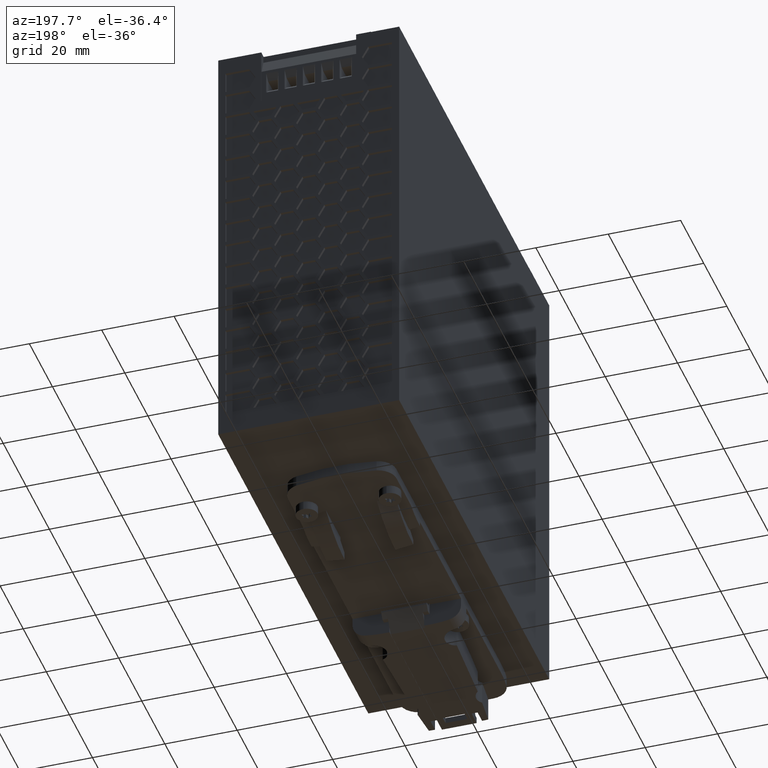
[diagram: clean part render]
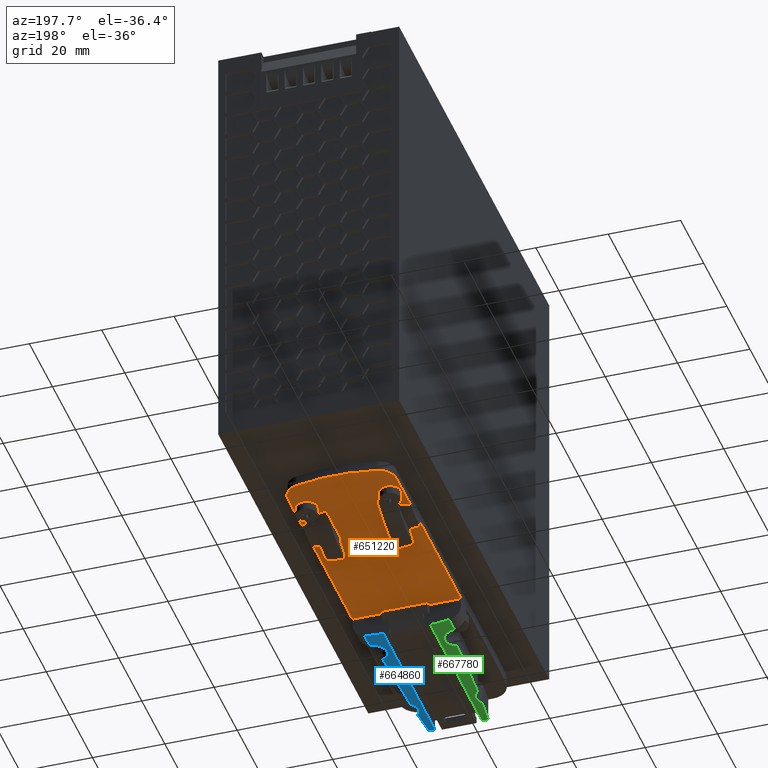
[diagram: same view with three faces highlighted in distinct colors, each labeled with its STEP entity id]
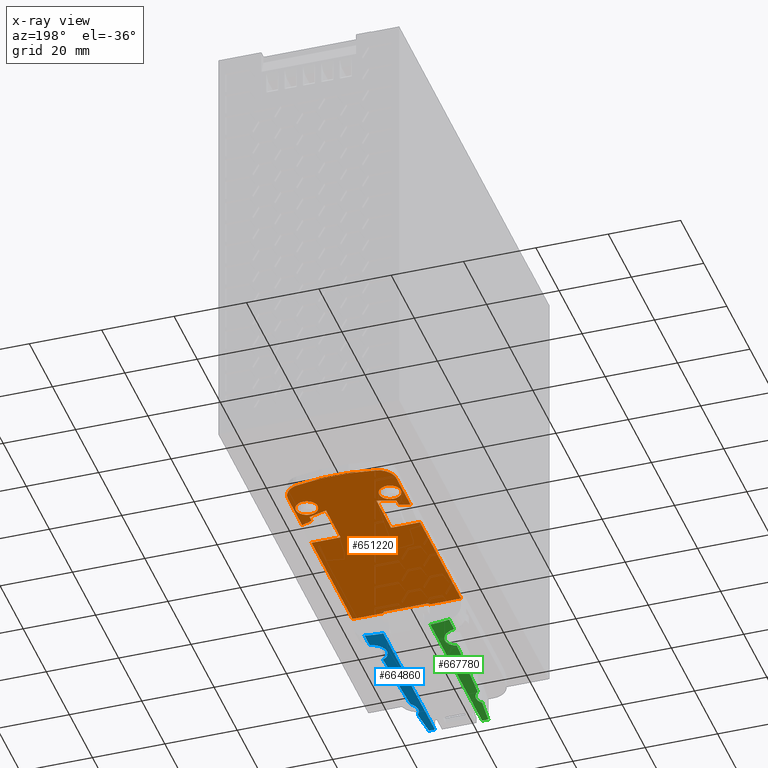
[diagram: x-ray of the same camera — body ghosted, the three highlighted faces saturated]
A machine part, auxiliary view with three faces highlighted in distinct colors.
The next image is the same camera in x-ray (body ghosted, the three faces saturated) — at least one of them is partly hidden behind the body in this view.
Their STEP definitions:

[orange] entity #651220 — the highlighted planar face has unit normal (-0, 0, -1).
#310870=CARTESIAN_POINT('',(32.,-2.89999999999985,64.2));
#310880=DIRECTION('',(0.,0.,-1.));
#310890=VECTOR('',#310880,1.);
#310900=LINE('',#310870,#310890);
#310910=CARTESIAN_POINT('',(32.,-2.89999999999985,48.6523651948));
#310920=VERTEX_POINT('',#310910);
#310930=CARTESIAN_POINT('',(32.,-2.90000000000198,36.1135978063275));
#310940=VERTEX_POINT('',#310930);
#310950=EDGE_CURVE('',#310920,#310940,#310900,.T.);
#311210=CARTESIAN_POINT('',(42.4330361227589,-5.8719307806161,
57.3092786376549));
#311220=CARTESIAN_POINT('',(40.5668610856737,-6.28936042862193,
57.3075803883665));
#311230=CARTESIAN_POINT('',(38.7006860485886,-6.7067900766278,
57.3058821390782));
#311240=CARTESIAN_POINT('',(35.3079142542569,-7.4656918450729,
57.3027946621959));
#311250=CARTESIAN_POINT('',(33.6910771503104,-7.71225648277388,
57.3015810061395));
#311260=CARTESIAN_POINT('',(30.2523935024902,-8.0731262918686,
57.2991526175823));
#311270=CARTESIAN_POINT('',(28.350584266918,-8.27271008789782,
57.2978095653394));
#311280=CARTESIAN_POINT('',(26.4487750313459,-8.47229388392702,
57.2964665130965));
#311290=CARTESIAN_POINT('',(42.4539551395728,-5.95724139880369,
55.2502600450842));
#311300=CARTESIAN_POINT('',(40.5772798671158,-6.34111271368933,
55.2814383746029));
#311310=CARTESIAN_POINT('',(38.7006045946588,-6.72498402857495,
55.3126167041215));
#311320=CARTESIAN_POINT('',(35.3079943449856,-7.41893773305972,
55.3689801687258));
#311330=CARTESIAN_POINT('',(33.6919153121875,-7.65151923842788,
55.3944994954395));
#311340=CARTESIAN_POINT('',(30.253943043729,-7.99073841994543,
55.4438099938094));
#311350=CARTESIAN_POINT('',(28.3504536945764,-8.17855264549077,
55.4711115544734));
#311360=CARTESIAN_POINT('',(26.4469643454238,-8.36636687103612,
55.4984131151374));
#311370=CARTESIAN_POINT('',(42.4715013295073,-6.04398788001157,
53.1906142896878));
#311380=CARTESIAN_POINT('',(40.5860122351181,-6.39358293026685,
53.2549827794264));
#311390=CARTESIAN_POINT('',(38.700523140729,-6.74317798052213,
53.3193512691649));
#311400=CARTESIAN_POINT('',(35.3080744357144,-7.37218362104655,
53.4351656752556));
#311410=CARTESIAN_POINT('',(33.6927534740647,-7.59078199408189,
53.4874179847395));
#311420=CARTESIAN_POINT('',(30.2554925849678,-7.90835054802223,
53.5884673700365));
#311430=CARTESIAN_POINT('',(28.3510617400664,-8.08430092508354,
53.6444542655406));
#311440=CARTESIAN_POINT('',(26.4466308951649,-8.26025130214487,
53.7004411610446));
#311450=CARTESIAN_POINT('',(42.5071482549067,-6.25036189252249,
49.4209231055801));
#311460=CARTESIAN_POINT('',(40.6037432718401,-6.51903220769434,
49.3265744421779));
#311470=CARTESIAN_POINT('',(38.7003382887734,-6.78770252286618,
49.2322257787758));
#311480=CARTESIAN_POINT('',(35.3082554680595,-7.26650339217036,
49.0640857964121));
#311490=CARTESIAN_POINT('',(33.6947308680591,-7.44749050650361,
48.988225610378));
#311500=CARTESIAN_POINT('',(30.2593787824376,-7.70004534760166,
48.8415215652227));
#311510=CARTESIAN_POINT('',(28.3514124737184,-7.8403122302702,
48.7600433444952));
#311520=CARTESIAN_POINT('',(26.4434461649992,-7.98057911293873,
48.6785651237676));
#311530=CARTESIAN_POINT('',(42.4608041585776,-5.84829819696226,
45.2963291142109));
#311540=CARTESIAN_POINT('',(40.5751185068833,-6.01310752754441,
44.9584347554809));
#311550=CARTESIAN_POINT('',(38.6894328551889,-6.17791685812655,
44.6205403967509));
#311560=CARTESIAN_POINT('',(35.319114616798,-6.47248339535341,
44.0166160264012));
#311570=CARTESIAN_POINT('',(33.7109189198015,-6.58591233526711,
43.7684001491641));
#311580=CARTESIAN_POINT('',(30.2759433236546,-6.73921185831043,
43.332605380787));
#311590=CARTESIAN_POINT('',(28.3829355094279,-6.82369490248801,
43.0924398020672));
#311600=CARTESIAN_POINT('',(26.4899276952012,-6.9081779466656,
42.8522742233474));
#311610=CARTESIAN_POINT('',(42.3225651269015,-4.17137928671241,
41.4714496218796));
#311620=CARTESIAN_POINT('',(40.4995471570175,-4.21269459471098,
40.9144327159765));
#311630=CARTESIAN_POINT('',(38.6765291871335,-4.25400990270954,
40.3574158100735));
#311640=CARTESIAN_POINT('',(35.3319653811219,-4.329808214108,
39.3354957776897));
#311650=CARTESIAN_POINT('',(33.7290264313355,-4.35892010890649,
38.9227194583392));
#311660=CARTESIAN_POINT('',(30.2933207347094,-4.40628942507581,
38.2058204329454));
#311670=CARTESIAN_POINT('',(28.4351246083815,-4.43190904665722,
37.8180867009022));
#311680=CARTESIAN_POINT('',(26.5769284820535,-4.45752866823862,
37.4303529688589));
#311690=CARTESIAN_POINT('',(42.17945453902,-2.0984814082195,
38.2710564184085));
#311700=CARTESIAN_POINT('',(40.4258545625356,-2.07340280328271,
37.5827138078042));
#311710=CARTESIAN_POINT('',(38.6722545860513,-2.04832419834592,
36.8943711971999));
#311720=CARTESIAN_POINT('',(35.3362224829122,-2.00061489617154,
35.5848746884589));
#311730=CARTESIAN_POINT('',(33.7350067212852,-1.98229146073094,
35.051834035831));
#311740=CARTESIAN_POINT('',(30.2990273468992,-1.9524857358488,
34.1042558552693));
#311750=CARTESIAN_POINT('',(28.4828651304575,-1.93673126660833,
33.603392636622));
#311760=CARTESIAN_POINT('',(26.6667029140159,-1.92097679736788,
33.1025294179747));
#311770=CARTESIAN_POINT('',(42.2014714119179,-0.973799623313646,
36.5542795923739));
#311780=CARTESIAN_POINT('',(40.4359323961913,-0.97569003400325,
35.8826208818768));
#311790=CARTESIAN_POINT('',(38.6703933804648,-0.97758044469284,
35.2109621713798));
#311800=CARTESIAN_POINT('',(35.3380857771499,-0.981148437163242,
33.943262387979));
#311810=CARTESIAN_POINT('',(33.7375169976208,-0.984681862494128,
33.4269977560304));
#311820=CARTESIAN_POINT('',(30.3012372695568,-0.998969557206628,
32.5087376090988));
#311830=CARTESIAN_POINT('',(28.4791808000678,-1.00654547903056,
32.0218384117703));
#311840=CARTESIAN_POINT('',(26.6571243305788,-1.01412140085451,
31.5349392144417));
#311850=CARTESIAN_POINT('',(42.2220204806421,0.151714374182433,
34.8362878369812));
#311860=CARTESIAN_POINT('',(40.4452763277602,0.122438841571324,
34.1819204912704));
#311870=CARTESIAN_POINT('',(38.6685321748784,0.0931633089602286,
33.5275531455596));
#311880=CARTESIAN_POINT('',(35.3399490713876,0.0383180218450576,
32.3016500874991));
#311890=CARTESIAN_POINT('',(33.7400272739564,0.0129277357426787,
31.8021614762297));
#311900=CARTESIAN_POINT('',(30.3034471922145,-0.0454533785644529,
30.9132193629283));
#311910=CARTESIAN_POINT('',(28.4760678670652,-0.076497160093318,
30.4405301194179));
#311920=CARTESIAN_POINT('',(26.6486885419159,-0.107540941622176,
29.9678408759075));
#311930=B_SPLINE_SURFACE_WITH_KNOTS('',3,3,((#311210,#311290,#311370,
#311450,#311530,#311610,#311690,#311770,#311850),(#311220,#311300,
#311380,#311460,#311540,#311620,#311700,#311780,#311860),(#311230,
#311310,#311390,#311470,#311550,#311630,#311710,#311790,#311870),(
#311240,#311320,#311400,#311480,#311560,#311640,#311720,#311800,#311880)
,(#311250,#311330,#311410,#311490,#311570,#311650,#311730,#311810,
#311890),(#311260,#311340,#311420,#311500,#311580,#311660,#311740,
#311820,#311900),(#311270,#311350,#311430,#311510,#311590,#311670,
#311750,#311830,#311910),(#311280,#311360,#311440,#311520,#311600,
#311680,#311760,#311840,#311920)),.UNSPECIFIED.,.F.,.F.,.F.,(4,2,2,4),(4
,2,1,2,4),(-0.530299195767868,0.0083302807718563,0.494384454739451,
1.03935536184108),(-0.34261094403884,2.36588213699451E-9,0.4974044135323
,0.994808800538165,1.33311810925078),.UNSPECIFIED.);
#312590=CARTESIAN_POINT('',(37.,-2.9000000000019,37.6308130367753));
#312600=VERTEX_POINT('',#312590);
#312890=CARTESIAN_POINT('',(50.3776186215084,-1.50441604344119,
59.4422116509293));
#312900=CARTESIAN_POINT('',(46.8905807945972,-2.46315462780623,
59.4291910818211));
#312910=CARTESIAN_POINT('',(43.4035429676859,-3.42189321217126,
59.4161705127128));
#312920=CARTESIAN_POINT('',(38.940036942065,-4.64910543662229,
59.3995038197898));
#312930=CARTESIAN_POINT('',(37.960256886242,-4.85962099943143,
59.3958818651492));
#312940=CARTESIAN_POINT('',(33.4409182175586,-5.63586521223752,
59.3801421308891));
#312950=CARTESIAN_POINT('',(29.8633678936988,-6.2503473164804,
59.3676824115523));
#312960=CARTESIAN_POINT('',(26.2858175698389,-6.86482942072328,
59.3552226922154));
#312970=CARTESIAN_POINT('',(50.4649916167112,-1.82158789203813,
55.3601727874814));
#312980=CARTESIAN_POINT('',(46.933910524371,-2.66380690771619,
55.4705294111995));
#312990=CARTESIAN_POINT('',(43.4028294320308,-3.50602592339425,
55.5808860349176));
#313000=CARTESIAN_POINT('',(38.9402583424642,-4.57042012227036,
55.7203544486039));
#313010=CARTESIAN_POINT('',(37.9611211893232,-4.75735439245213,
55.7498389987853));
#313020=CARTESIAN_POINT('',(33.4445600352414,-5.45403637972801,
55.8793868759339));
#313030=CARTESIAN_POINT('',(29.8531594499154,-6.00801185167029,
55.9823985049027));
#313040=CARTESIAN_POINT('',(26.2617588645895,-6.56198732361257,
56.0854101338715));
#313050=CARTESIAN_POINT('',(50.5286159205105,-2.15008544179697,
51.2734387849827));
#313060=CARTESIAN_POINT('',(46.9653659084431,-2.8701220382071,
51.5095201710525));
#313070=CARTESIAN_POINT('',(43.4021158963756,-3.59015863461723,
51.7456015571224));
#313080=CARTESIAN_POINT('',(38.9404797428634,-4.49173480791843,
52.0412050774179));
#313090=CARTESIAN_POINT('',(37.9619854924043,-4.65508778547282,
52.1037961324214));
#313100=CARTESIAN_POINT('',(33.4482018529241,-5.27220754721856,
52.3786316209787));
#313110=CARTESIAN_POINT('',(29.8499081675462,-5.76416248329237,
52.5977247104977));
#313120=CARTESIAN_POINT('',(26.2516144821684,-6.25611741936619,
52.8168178000166));
#313130=CARTESIAN_POINT('',(50.6483174526818,-2.76885470264525,
46.2375598117744));
#313140=CARTESIAN_POINT('',(47.0245824565934,-3.25896317019364,
46.0156643377701));
#313150=CARTESIAN_POINT('',(43.400847460505,-3.74907163774202,
45.7937688637657));
#313160=CARTESIAN_POINT('',(38.9408721296792,-4.35228122041133,
45.5206671217372));
#313170=CARTESIAN_POINT('',(37.9635597476711,-4.46881777420784,
45.4628361372625));
#313180=CARTESIAN_POINT('',(33.455157280269,-4.91477929631874,
45.2088834944163));
#313190=CARTESIAN_POINT('',(29.8298122310565,-5.27339066875368,
45.0046723657218));
#313200=CARTESIAN_POINT('',(26.204467181844,-5.6320020411886,
44.8004612370273));
#313210=CARTESIAN_POINT('',(50.6049814775971,-2.6222892265708,
44.2393795760115));
#313220=CARTESIAN_POINT('',(46.9952071859746,-2.99199532570333,
43.7297662101082));
#313230=CARTESIAN_POINT('',(43.3854328943521,-3.36170142483587,
43.220152844205));
#313240=CARTESIAN_POINT('',(38.9456771456137,-3.8164126190445,
42.5933660458853));
#313250=CARTESIAN_POINT('',(37.971404518455,-3.90418316005901,
42.4666744442494));
#313260=CARTESIAN_POINT('',(33.4708672381153,-4.23934325728173,
41.9355672067343));
#313270=CARTESIAN_POINT('',(29.8596925148013,-4.50827151983414,
41.5094134139723));
#313280=CARTESIAN_POINT('',(26.2485177914873,-4.77719978238656,
41.0832596212103));
#313290=CARTESIAN_POINT('',(50.2943671864489,-1.34931680142654,
39.9913724092951));
#313300=CARTESIAN_POINT('',(46.8245274244743,-1.43722363528622,
38.9357969268405));
#313310=CARTESIAN_POINT('',(43.3546876624996,-1.52513046914591,
37.8802214443859));
#313320=CARTESIAN_POINT('',(38.9552615333447,-1.63658795662179,
36.5418523330229));
#313330=CARTESIAN_POINT('',(37.9868939039784,-1.65819126234517,
36.2753377051105));
#313340=CARTESIAN_POINT('',(33.5012358905247,-1.74300799729021,
35.1724183339624));
#313350=CARTESIAN_POINT('',(29.9899657319504,-1.80940059107845,
34.3090783594011));
#313360=CARTESIAN_POINT('',(26.4786955733761,-1.87579318486669,
33.4457383848398));
#313370=CARTESIAN_POINT('',(50.4222429006199,-0.0255577472708595,
36.007238829443));
#313380=CARTESIAN_POINT('',(46.879676351948,-0.136535036818351,
35.0982011918251));
#313390=CARTESIAN_POINT('',(43.3371098032761,-0.247512326365836,
34.1891635542072));
#313400=CARTESIAN_POINT('',(38.9607663109547,-0.384609183188104,
33.0661752080444));
#313410=CARTESIAN_POINT('',(37.9954847551747,-0.41250064717169,
32.8414472804948));
#313420=CARTESIAN_POINT('',(33.516650024788,-0.534077769296189,
31.903506703822));
#313430=CARTESIAN_POINT('',(29.9619732528168,-0.630568798332604,
31.1590997805729));
#313440=CARTESIAN_POINT('',(26.4072964808457,-0.727059827369018,
30.4146928573239));
#313450=CARTESIAN_POINT('',(50.5325160442117,1.29974594385899,
32.0019344645501));
#313460=CARTESIAN_POINT('',(46.9260239941322,1.16492588013661,
31.2500200642893));
#313470=CARTESIAN_POINT('',(43.3195319440527,1.03010581641421,
30.4981056640284));
#313480=CARTESIAN_POINT('',(38.9662710885648,0.867369590245588,
29.5904980830659));
#313490=CARTESIAN_POINT('',(38.004075606371,0.83318996800179,
29.4075568558791));
#313500=CARTESIAN_POINT('',(33.5320641590512,0.674852458697835,
28.6345950736815));
#313510=CARTESIAN_POINT('',(29.9401788551655,0.547676985329218,
28.0137580971563));
#313520=CARTESIAN_POINT('',(26.3482935512799,0.420501511960609,
27.392921120631));
#313530=B_SPLINE_SURFACE_WITH_KNOTS('',3,3,((#312890,#312970,#313050,
#313130,#313210,#313290,#313370,#313450),(#312900,#312980,#313060,
#313140,#313220,#313300,#313380,#313460),(#312910,#312990,#313070,
#313150,#313230,#313310,#313390,#313470),(#312920,#313000,#313080,
#313160,#313240,#313320,#313400,#313480),(#312930,#313010,#313090,
#313170,#313250,#313330,#313410,#313490),(#312940,#313020,#313100,
#313180,#313260,#313340,#313420,#313500),(#312950,#313030,#313110,
#313190,#313270,#313350,#313430,#313510),(#312960,#313040,#313120,
#313200,#313280,#313360,#313440,#313520)),.UNSPECIFIED.,.F.,.F.,.F.,(4,2
,2,4),(4,2,2,4),(-1.04425037197643,0.00840241999769925,0.303174667007196
,1.36540567626834),(-0.672680963199468,0.00647129604993427,
0.596721513342289,1.28419559916893),.UNSPECIFIED.);
#313720=CARTESIAN_POINT('',(37.,-2.89999999999985,39.3937014627783));
#313730=VERTEX_POINT('',#313720);
#313760=CARTESIAN_POINT('',(37.,-2.89999999999985,64.2));
#313770=DIRECTION('',(0.,0.,-1.));
#313780=VECTOR('',#313770,1.);
#313790=LINE('',#313760,#313780);
#313800=EDGE_CURVE('',#313730,#312600,#313790,.T.);
#313930=CARTESIAN_POINT('',(19.775,-2.89999999999985,41.35442945301));
#313940=DIRECTION('',(-0.,-1.,-0.));
#313950=DIRECTION('',(-1.,0.,0.));
#313960=AXIS2_PLACEMENT_3D('',#313930,#313940,#313950);
#313970=PLANE('',#313960);
#313980=CARTESIAN_POINT('',(32.,-2.89999999999985,36.1135978063239));
#313990=CARTESIAN_POINT('',(32.422528282042,-2.89999999999985,
36.2191689329876));
#314000=CARTESIAN_POINT('',(32.8440059468444,-2.89999999999985,
36.32840228732));
#314010=CARTESIAN_POINT('',(33.264116857907,-2.89999999999985,
36.4440666582654));
#314020=CARTESIAN_POINT('',(33.6841306879949,-2.89999999999985,
36.5597043010075));
#314030=CARTESIAN_POINT('',(34.1027064456705,-2.89999999999985,
36.6808458496861));
#314040=CARTESIAN_POINT('',(34.5196408262398,-2.89999999999985,
36.8074049157219));
#314050=CARTESIAN_POINT('',(34.9365752042716,-2.89999999999985,
36.9339639809873));
#314060=CARTESIAN_POINT('',(35.3518673778619,-2.89999999999985,
37.0659402882663));
#314070=CARTESIAN_POINT('',(35.7653205673616,-2.89999999999985,
37.2032258823249));
#314080=CARTESIAN_POINT('',(36.1788481313613,-2.89999999999985,
37.3405361721596));
#314090=CARTESIAN_POINT('',(36.5900950544704,-2.89999999999985,
37.4837088870251));
#314100=CARTESIAN_POINT('',(37.,-2.89999999999985,37.630813036772));
#314110=B_SPLINE_CURVE_WITH_KNOTS('',3,(#313980,#313990,#314000,#314010,
#314020,#314030,#314040,#314050,#314060,#314070,#314080,#314090,#314100)
,.UNSPECIFIED.,.F.,.F.,(4,3,3,3,4),(0.,1.30662994483364,2.61370748606202
,3.9207987770028,5.22745320657146),.UNSPECIFIED.);
#314120=SURFACE_CURVE('',#314110,(#313970,#311930),.CURVE_3D.);
#314130=EDGE_CURVE('',#310940,#312600,#314120,.T.);
#647140=CARTESIAN_POINT('',(18.7,-2.89999999999985,84.1523651948));
#647150=VERTEX_POINT('',#647140);
#647180=CARTESIAN_POINT('',(50.,-2.89999999999985,84.1523651948));
#647190=DIRECTION('',(1.,0.,0.));
#647200=VECTOR('',#647190,1.);
#647210=LINE('',#647180,#647200);
#647220=CARTESIAN_POINT('',(10.,-2.89999999999985,84.1523651948));
#647230=VERTEX_POINT('',#647220);
#647240=EDGE_CURVE('',#647230,#647150,#647210,.T.);
#647760=CARTESIAN_POINT('',(40.,-2.89999999999985,64.2));
#647770=DIRECTION('',(0.,0.,1.));
#647780=VECTOR('',#647770,1.);
#647790=LINE('',#647760,#647780);
#647800=CARTESIAN_POINT('',(40.,-2.89999999999985,48.6523651948));
#647810=VERTEX_POINT('',#647800);
#647820=CARTESIAN_POINT('',(40.,-2.89999999999985,84.1523651948));
#647830=VERTEX_POINT('',#647820);
#647840=EDGE_CURVE('',#647810,#647830,#647790,.T.);
#647850=ORIENTED_EDGE('',*,*,#647840,.T.);
#647860=CARTESIAN_POINT('',(50.,-2.89999999999985,48.6523651948));
#647870=DIRECTION('',(1.,0.,0.));
#647880=VECTOR('',#647870,1.);
#647890=LINE('',#647860,#647880);
#647900=EDGE_CURVE('',#310920,#647810,#647890,.T.);
#647910=ORIENTED_EDGE('',*,*,#647900,.T.);
#647920=ORIENTED_EDGE('',*,*,#310950,.F.);
#647930=ORIENTED_EDGE('',*,*,#314130,.F.);
#647940=ORIENTED_EDGE('',*,*,#313800,.T.);
#647950=CARTESIAN_POINT('',(36.9999999999999,-2.89999999999973,
39.3937014627779));
#647960=CARTESIAN_POINT('',(37.2541889821016,-2.89999999999973,
39.4727677852736));
#647970=CARTESIAN_POINT('',(37.5074653837831,-2.89999999999985,
39.554700397944));
#647980=CARTESIAN_POINT('',(37.7597802388887,-2.89999999999985,
39.6398356838465));
#647990=CARTESIAN_POINT('',(38.0120800483714,-2.89999999999985,
39.7249658931021));
#648000=CARTESIAN_POINT('',(38.2633814821061,-2.89999999999985,
39.8132032322205));
#648010=CARTESIAN_POINT('',(38.513554951699,-2.89999999999985,
39.9045389707841));
#648020=CARTESIAN_POINT('',(38.7637284016661,-2.89999999999985,
39.9958747021825));
#648030=CARTESIAN_POINT('',(39.0127749288632,-2.89999999999985,
40.0903086278467));
#648040=CARTESIAN_POINT('',(39.2605568882091,-2.89999999999985,
40.187854978932));
#648050=CARTESIAN_POINT('',(39.5083874789949,-2.89999999999985,
40.2854204751542));
#648060=CARTESIAN_POINT('',(39.7546293183134,-2.89999999999985,
40.3864764181381));
#648070=CARTESIAN_POINT('',(40.0000000000002,-2.89999999999985,
40.4897883815872));
#648080=B_SPLINE_CURVE_WITH_KNOTS('',3,(#647950,#647960,#647970,#647980,
#647990,#648000,#648010,#648020,#648030,#648040,#648050,#648060,#648070)
,.UNSPECIFIED.,.F.,.F.,(4,3,3,3,4),(0.,0.798672845791555,
1.59759488273909,2.39653985817633,3.19526958822754),.UNSPECIFIED.);
#648090=SURFACE_CURVE('',#648080,(#313970,#313530),.CURVE_3D.);
#648100=CARTESIAN_POINT('',(40.,-2.89999999999985,40.4897883815871));
#648110=VERTEX_POINT('',#648100);
#648120=EDGE_CURVE('',#313730,#648110,#648090,.T.);
#648130=ORIENTED_EDGE('',*,*,#648120,.F.);
#648140=CARTESIAN_POINT('',(40.,-2.89999999999985,28.1275432578394));
#648150=VERTEX_POINT('',#648140);
#648160=EDGE_CURVE('',#648150,#648110,#647790,.T.);
#648170=ORIENTED_EDGE('',*,*,#648160,.T.);
#648180=CARTESIAN_POINT('',(35.,-2.89999999999985,28.1275432578394));
#648190=DIRECTION('',(0.,-1.,0.));
#648200=DIRECTION('',(0.,0.,1.));
#648210=AXIS2_PLACEMENT_3D('',#648180,#648190,#648200);
#648220=CIRCLE('',#648210,5.);
#648230=CARTESIAN_POINT('',(36.1111111111111,-2.89999999999985,
23.2525630426216));
#648240=VERTEX_POINT('',#648230);
#648250=EDGE_CURVE('',#648240,#648150,#648220,.T.);
#648260=ORIENTED_EDGE('',*,*,#648250,.T.);
#648270=CARTESIAN_POINT('',(25.,-2.89999999999985,72.0023651948));
#648280=DIRECTION('',(0.,-1.,0.));
#648290=DIRECTION('',(-1.,0.,0.));
#648300=AXIS2_PLACEMENT_3D('',#648270,#648280,#648290);
#648310=CIRCLE('',#648300,50.);
#648320=CARTESIAN_POINT('',(13.8888888888889,-2.89999999999985,
23.2525630426216));
#648330=VERTEX_POINT('',#648320);
#648340=EDGE_CURVE('',#648330,#648240,#648310,.T.);
#648350=ORIENTED_EDGE('',*,*,#648340,.T.);
#648360=CARTESIAN_POINT('',(15.,-2.89999999999985,28.1275432578394));
#648370=DIRECTION('',(0.,-1.,0.));
#648380=DIRECTION('',(0.,0.,1.));
#648390=AXIS2_PLACEMENT_3D('',#648360,#648370,#648380);
#648400=CIRCLE('',#648390,5.);
#648410=CARTESIAN_POINT('',(10.,-2.89999999999985,28.1275432578394));
#648420=VERTEX_POINT('',#648410);
#648430=EDGE_CURVE('',#648420,#648330,#648400,.T.);
#648440=ORIENTED_EDGE('',*,*,#648430,.T.);
#648450=CARTESIAN_POINT('',(10.,-2.89999999999985,64.2));
#648460=DIRECTION('',(0.,0.,1.));
#648470=VECTOR('',#648460,1.);
#648480=LINE('',#648450,#648470);
#648490=CARTESIAN_POINT('',(10.,-2.89999999999985,40.4897883815871));
#648500=VERTEX_POINT('',#648490);
#648510=EDGE_CURVE('',#648420,#648500,#648480,.T.);
#648520=ORIENTED_EDGE('',*,*,#648510,.F.);
#648530=CARTESIAN_POINT('',(-0.377618621508404,-1.50441604344119,
59.4422116509293));
#648540=CARTESIAN_POINT('',(3.10941920540283,-2.46315462780623,
59.4291910818211));
#648550=CARTESIAN_POINT('',(6.59645703231406,-3.42189321217126,
59.4161705127128));
#648560=CARTESIAN_POINT('',(11.059963057935,-4.64910543662229,
59.3995038197898));
#648570=CARTESIAN_POINT('',(12.039743113758,-4.85962099943143,
59.3958818651492));
#648580=CARTESIAN_POINT('',(16.5590817824414,-5.63586521223752,
59.3801421308891));
#648590=CARTESIAN_POINT('',(20.1366321063012,-6.2503473164804,
59.3676824115523));
#648600=CARTESIAN_POINT('',(23.7141824301611,-6.86482942072328,
59.3552226922154));
#648610=CARTESIAN_POINT('',(-0.464991616711238,-1.82158789203813,
55.3601727874814));
#648620=CARTESIAN_POINT('',(3.06608947562899,-2.66380690771619,
55.4705294111995));
#648630=CARTESIAN_POINT('',(6.59717056796922,-3.50602592339425,
55.5808860349176));
#648640=CARTESIAN_POINT('',(11.0597416575358,-4.57042012227036,
55.7203544486039));
#648650=CARTESIAN_POINT('',(12.0388788106768,-4.75735439245213,
55.7498389987853));
#648660=CARTESIAN_POINT('',(16.5554399647586,-5.45403637972801,
55.8793868759339));
#648670=CARTESIAN_POINT('',(20.1468405500846,-6.00801185167029,
55.9823985049027));
#648680=CARTESIAN_POINT('',(23.7382411354105,-6.56198732361257,
56.0854101338715));
#648690=CARTESIAN_POINT('',(-0.528615920510532,-2.15008544179697,
51.2734387849827));
#648700=CARTESIAN_POINT('',(3.03463409155692,-2.8701220382071,
51.5095201710525));
#648710=CARTESIAN_POINT('',(6.59788410362438,-3.59015863461723,
51.7456015571224));
#648720=CARTESIAN_POINT('',(11.0595202571366,-4.49173480791843,
52.0412050774179));
#648730=CARTESIAN_POINT('',(12.0380145075957,-4.65508778547282,
52.1037961324214));
#648740=CARTESIAN_POINT('',(16.5517981470759,-5.27220754721856,
52.3786316209787));
#648750=CARTESIAN_POINT('',(20.1500918324538,-5.76416248329237,
52.5977247104977));
#648760=CARTESIAN_POINT('',(23.7483855178316,-6.25611741936619,
52.8168178000166));
#648770=CARTESIAN_POINT('',(-0.648317452681759,-2.76885470264525,
46.2375598117744));
#648780=CARTESIAN_POINT('',(2.97541754340661,-3.25896317019364,
46.0156643377701));
#648790=CARTESIAN_POINT('',(6.59915253949497,-3.74907163774202,
45.7937688637657));
#648800=CARTESIAN_POINT('',(11.0591278703208,-4.35228122041133,
45.5206671217372));
#648810=CARTESIAN_POINT('',(12.0364402523289,-4.46881777420784,
45.4628361372625));
#648820=CARTESIAN_POINT('',(16.544842719731,-4.91477929631874,
45.2088834944163));
#648830=CARTESIAN_POINT('',(20.1701877689435,-5.27339066875368,
45.0046723657218));
#648840=CARTESIAN_POINT('',(23.795532818156,-5.6320020411886,
44.8004612370273));
#648850=CARTESIAN_POINT('',(-0.604981477597093,-2.6222892265708,
44.2393795760115));
#648860=CARTESIAN_POINT('',(3.00479281402542,-2.99199532570333,
43.7297662101082));
#648870=CARTESIAN_POINT('',(6.61456710564794,-3.36170142483587,
43.220152844205));
#648880=CARTESIAN_POINT('',(11.0543228543863,-3.8164126190445,
42.5933660458853));
#648890=CARTESIAN_POINT('',(12.028595481545,-3.90418316005901,
42.4666744442494));
#648900=CARTESIAN_POINT('',(16.5291327618847,-4.23934325728173,
41.9355672067343));
#648910=CARTESIAN_POINT('',(20.1403074851987,-4.50827151983414,
41.5094134139723));
#648920=CARTESIAN_POINT('',(23.7514822085127,-4.77719978238656,
41.0832596212103));
#648930=CARTESIAN_POINT('',(-0.294367186448909,-1.34931680142654,
39.9913724092951));
#648940=CARTESIAN_POINT('',(3.17547257552575,-1.43722363528622,
38.9357969268405));
#648950=CARTESIAN_POINT('',(6.6453123375004,-1.52513046914591,
37.8802214443859));
#648960=CARTESIAN_POINT('',(11.0447384666553,-1.63658795662179,
36.5418523330229));
#648970=CARTESIAN_POINT('',(12.0131060960216,-1.65819126234517,
36.2753377051105));
#648980=CARTESIAN_POINT('',(16.4987641094753,-1.74300799729021,
35.1724183339624));
#648990=CARTESIAN_POINT('',(20.0100342680496,-1.80940059107845,
34.3090783594011));
#649000=CARTESIAN_POINT('',(23.5213044266239,-1.87579318486669,
33.4457383848398));
#649010=CARTESIAN_POINT('',(-0.422242900619878,-0.0255577472708595,
36.007238829443));
#649020=CARTESIAN_POINT('',(3.12032364805199,-0.136535036818351,
35.0982011918251));
#649030=CARTESIAN_POINT('',(6.66289019672386,-0.247512326365836,
34.1891635542072));
#649040=CARTESIAN_POINT('',(11.0392336890453,-0.384609183188104,
33.0661752080444));
#649050=CARTESIAN_POINT('',(12.0045152448253,-0.41250064717169,
32.8414472804948));
#649060=CARTESIAN_POINT('',(16.483349975212,-0.534077769296189,
31.903506703822));
#649070=CARTESIAN_POINT('',(20.0380267471832,-0.630568798332604,
31.1590997805729));
#649080=CARTESIAN_POINT('',(23.5927035191543,-0.727059827369018,
30.4146928573239));
#649090=CARTESIAN_POINT('',(-0.532516044211732,1.29974594385899,
32.0019344645501));
#649100=CARTESIAN_POINT('',(3.07397600586779,1.16492588013661,
31.2500200642893));
#649110=CARTESIAN_POINT('',(6.68046805594732,1.03010581641421,
30.4981056640284));
#649120=CARTESIAN_POINT('',(11.0337289114352,0.867369590245588,
29.5904980830659));
#649130=CARTESIAN_POINT('',(11.995924393629,0.83318996800179,
29.4075568558791));
#649140=CARTESIAN_POINT('',(16.4679358409488,0.674852458697835,
28.6345950736815));
#649150=CARTESIAN_POINT('',(20.0598211448345,0.547676985329218,
28.0137580971563));
#649160=CARTESIAN_POINT('',(23.6517064487201,0.420501511960609,
27.392921120631));
#649170=B_SPLINE_SURFACE_WITH_KNOTS('',3,3,((#648530,#648610,#648690,
#648770,#648850,#648930,#649010,#649090),(#648540,#648620,#648700,
#648780,#648860,#648940,#649020,#649100),(#648550,#648630,#648710,
#648790,#648870,#648950,#649030,#649110),(#648560,#648640,#648720,
#648800,#648880,#648960,#649040,#649120),(#648570,#648650,#648730,
#648810,#648890,#648970,#649050,#649130),(#648580,#648660,#648740,
#648820,#648900,#648980,#649060,#649140),(#648590,#648670,#648750,
#648830,#648910,#648990,#649070,#649150),(#648600,#648680,#648760,
#648840,#648920,#649000,#649080,#649160)),.UNSPECIFIED.,.F.,.F.,.F.,(4,2
,2,4),(4,2,2,4),(-1.04425037197643,0.00840241999769925,0.303174667007196
,1.36540567626834),(-0.672680963199468,0.00647129604993427,
0.596721513342289,1.28419559916893),.UNSPECIFIED.);
#649180=CARTESIAN_POINT('',(13.0000000000001,-2.89999999999973,
39.3937014627779));
#649190=CARTESIAN_POINT('',(12.7458110178984,-2.89999999999973,
39.4727677852737));
#649200=CARTESIAN_POINT('',(12.4925346162169,-2.89999999999985,
39.5547003979439));
#649210=CARTESIAN_POINT('',(12.2402197611113,-2.89999999999985,
39.6398356838465));
#649220=CARTESIAN_POINT('',(11.9879199516286,-2.89999999999985,
39.7249658931021));
#649230=CARTESIAN_POINT('',(11.7366185178938,-2.89999999999985,
39.8132032322205));
#649240=CARTESIAN_POINT('',(11.4864450483011,-2.89999999999985,
39.904538970784));
#649250=CARTESIAN_POINT('',(11.2362715983339,-2.89999999999985,
39.9958747021825));
#649260=CARTESIAN_POINT('',(10.9872250711369,-2.89999999999985,
40.0903086278467));
#649270=CARTESIAN_POINT('',(10.7394431117909,-2.89999999999985,
40.187854978932));
#649280=CARTESIAN_POINT('',(10.4916125210051,-2.89999999999985,
40.2854204751542));
#649290=CARTESIAN_POINT('',(10.2453706816865,-2.89999999999985,
40.3864764181381));
#649300=CARTESIAN_POINT('',(9.99999999999977,-2.89999999999985,
40.4897883815872));
#649310=B_SPLINE_CURVE_WITH_KNOTS('',3,(#649180,#649190,#649200,#649210,
#649220,#649230,#649240,#649250,#649260,#649270,#649280,#649290,#649300)
,.UNSPECIFIED.,.F.,.F.,(4,3,3,3,4),(0.,0.798672845791317,
1.59759488273877,2.39653985817619,3.19526958822734),.UNSPECIFIED.);
#649320=SURFACE_CURVE('',#649310,(#313970,#649170),.CURVE_3D.);
#649330=CARTESIAN_POINT('',(13.,-2.89999999999985,39.3937014627777));
#649340=VERTEX_POINT('',#649330);
#649350=EDGE_CURVE('',#649340,#648500,#649320,.T.);
#649360=ORIENTED_EDGE('',*,*,#649350,.T.);
#649370=CARTESIAN_POINT('',(13.,-2.89999999999985,64.2));
#649380=DIRECTION('',(0.,0.,-1.));
#649390=VECTOR('',#649380,1.);
#649400=LINE('',#649370,#649390);
#649410=CARTESIAN_POINT('',(13.,-2.89999999999985,37.630813036772));
#649420=VERTEX_POINT('',#649410);
#649430=EDGE_CURVE('',#649340,#649420,#649400,.T.);
#649440=ORIENTED_EDGE('',*,*,#649430,.F.);
#649450=CARTESIAN_POINT('',(7.56696387724114,-5.8719307806161,
57.3092786376549));
#649460=CARTESIAN_POINT('',(9.43313891432627,-6.28936042862193,
57.3075803883665));
#649470=CARTESIAN_POINT('',(11.2993139514114,-6.7067900766278,
57.3058821390782));
#649480=CARTESIAN_POINT('',(14.6920857457431,-7.4656918450729,
57.3027946621959));
#649490=CARTESIAN_POINT('',(16.3089228496896,-7.71225648277388,
57.3015810061395));
#649500=CARTESIAN_POINT('',(19.7476064975098,-8.0731262918686,
57.2991526175823));
#649510=CARTESIAN_POINT('',(21.649415733082,-8.27271008789782,
57.2978095653394));
#649520=CARTESIAN_POINT('',(23.5512249686541,-8.47229388392702,
57.2964665130965));
#649530=CARTESIAN_POINT('',(7.54604486042715,-5.95724139880369,
55.2502600450842));
#649540=CARTESIAN_POINT('',(9.42272013288418,-6.34111271368933,
55.2814383746029));
#649550=CARTESIAN_POINT('',(11.2993954053412,-6.72498402857495,
55.3126167041215));
#649560=CARTESIAN_POINT('',(14.6920056550144,-7.41893773305972,
55.3689801687258));
#649570=CARTESIAN_POINT('',(16.3080846878125,-7.65151923842788,
55.3944994954395));
#649580=CARTESIAN_POINT('',(19.746056956271,-7.99073841994543,
55.4438099938094));
#649590=CARTESIAN_POINT('',(21.6495463054236,-8.17855264549077,
55.4711115544734));
#649600=CARTESIAN_POINT('',(23.5530356545762,-8.36636687103612,
55.4984131151374));
#649610=CARTESIAN_POINT('',(7.52849867049267,-6.04398788001157,
53.1906142896878));
#649620=CARTESIAN_POINT('',(9.41398776488185,-6.39358293026685,
53.2549827794264));
#649630=CARTESIAN_POINT('',(11.299476859271,-6.74317798052213,
53.3193512691649));
#649640=CARTESIAN_POINT('',(14.6919255642856,-7.37218362104655,
53.4351656752556));
#649650=CARTESIAN_POINT('',(16.3072465259353,-7.59078199408189,
53.4874179847395));
#649660=CARTESIAN_POINT('',(19.7445074150322,-7.90835054802223,
53.5884673700365));
#649670=CARTESIAN_POINT('',(21.6489382599336,-8.08430092508354,
53.6444542655406));
#649680=CARTESIAN_POINT('',(23.5533691048351,-8.26025130214487,
53.7004411610446));
#649690=CARTESIAN_POINT('',(7.49285174509327,-6.25036189252249,
49.4209231055801));
#649700=CARTESIAN_POINT('',(9.39625672815992,-6.51903220769434,
49.3265744421779));
#649710=CARTESIAN_POINT('',(11.2996617112266,-6.78770252286618,
49.2322257787758));
#649720=CARTESIAN_POINT('',(14.6917445319405,-7.26650339217036,
49.0640857964121));
#649730=CARTESIAN_POINT('',(16.3052691319409,-7.44749050650361,
48.988225610378));
#649740=CARTESIAN_POINT('',(19.7406212175624,-7.70004534760166,
48.8415215652227));
#649750=CARTESIAN_POINT('',(21.6485875262816,-7.8403122302702,
48.7600433444952));
#649760=CARTESIAN_POINT('',(23.5565538350008,-7.98057911293873,
48.6785651237676));
#649770=CARTESIAN_POINT('',(7.53919584142236,-5.84829819696226,
45.2963291142109));
#649780=CARTESIAN_POINT('',(9.42488149311674,-6.01310752754441,
44.9584347554809));
#649790=CARTESIAN_POINT('',(11.3105671448111,-6.17791685812655,
44.6205403967509));
#649800=CARTESIAN_POINT('',(14.680885383202,-6.47248339535341,
44.0166160264012));
#649810=CARTESIAN_POINT('',(16.2890810801985,-6.58591233526711,
43.7684001491641));
#649820=CARTESIAN_POINT('',(19.7240566763454,-6.73921185831043,
43.332605380787));
#649830=CARTESIAN_POINT('',(21.6170644905721,-6.82369490248801,
43.0924398020672));
#649840=CARTESIAN_POINT('',(23.5100723047988,-6.9081779466656,
42.8522742233474));
#649850=CARTESIAN_POINT('',(7.67743487309854,-4.17137928671241,
41.4714496218796));
#649860=CARTESIAN_POINT('',(9.50045284298254,-4.21269459471098,
40.9144327159765));
#649870=CARTESIAN_POINT('',(11.3234708128665,-4.25400990270954,
40.3574158100735));
#649880=CARTESIAN_POINT('',(14.6680346188781,-4.329808214108,
39.3354957776897));
#649890=CARTESIAN_POINT('',(16.2709735686645,-4.35892010890649,
38.9227194583392));
#649900=CARTESIAN_POINT('',(19.7066792652906,-4.40628942507581,
38.2058204329454));
#649910=CARTESIAN_POINT('',(21.5648753916185,-4.43190904665722,
37.8180867009022));
#649920=CARTESIAN_POINT('',(23.4230715179465,-4.45752866823862,
37.4303529688589));
#649930=CARTESIAN_POINT('',(7.82054546098001,-2.0984814082195,
38.2710564184085));
#649940=CARTESIAN_POINT('',(9.57414543746436,-2.07340280328271,
37.5827138078042));
#649950=CARTESIAN_POINT('',(11.3277454139487,-2.04832419834592,
36.8943711971999));
#649960=CARTESIAN_POINT('',(14.6637775170878,-2.00061489617154,
35.5848746884589));
#649970=CARTESIAN_POINT('',(16.2649932787148,-1.98229146073094,
35.051834035831));
#649980=CARTESIAN_POINT('',(19.7009726531008,-1.9524857358488,
34.1042558552693));
#649990=CARTESIAN_POINT('',(21.5171348695425,-1.93673126660833,
33.603392636622));
#650000=CARTESIAN_POINT('',(23.3332970859841,-1.92097679736788,
33.1025294179747));
#650010=CARTESIAN_POINT('',(7.79852858808214,-0.973799623313646,
36.5542795923739));
#650020=CARTESIAN_POINT('',(9.56406760380865,-0.97569003400325,
35.8826208818768));
#650030=CARTESIAN_POINT('',(11.3296066195352,-0.97758044469284,
35.2109621713798));
#650040=CARTESIAN_POINT('',(14.6619142228501,-0.981148437163242,
33.943262387979));
#650050=CARTESIAN_POINT('',(16.2624830023792,-0.984681862494128,
33.4269977560304));
#650060=CARTESIAN_POINT('',(19.6987627304432,-0.998969557206628,
32.5087376090988));
#650070=CARTESIAN_POINT('',(21.5208191999322,-1.00654547903056,
32.0218384117703));
#650080=CARTESIAN_POINT('',(23.3428756694212,-1.01412140085451,
31.5349392144417));
#650090=CARTESIAN_POINT('',(7.77797951935794,0.151714374182433,
34.8362878369812));
#650100=CARTESIAN_POINT('',(9.55472367223978,0.122438841571324,
34.1819204912704));
#650110=CARTESIAN_POINT('',(11.3314678251216,0.0931633089602286,
33.5275531455596));
#650120=CARTESIAN_POINT('',(14.6600509286124,0.0383180218450576,
32.3016500874991));
#650130=CARTESIAN_POINT('',(16.2599727260437,0.0129277357426787,
31.8021614762297));
#650140=CARTESIAN_POINT('',(19.6965528077855,-0.0454533785644529,
30.9132193629283));
#650150=CARTESIAN_POINT('',(21.5239321329348,-0.076497160093318,
30.4405301194179));
#650160=CARTESIAN_POINT('',(23.3513114580841,-0.107540941622176,
29.9678408759075));
#650170=B_SPLINE_SURFACE_WITH_KNOTS('',3,3,((#649450,#649530,#649610,
#649690,#649770,#649850,#649930,#650010,#650090),(#649460,#649540,
#649620,#649700,#649780,#649860,#649940,#650020,#650100),(#649470,
#649550,#649630,#649710,#649790,#649870,#649950,#650030,#650110),(
#649480,#649560,#649640,#649720,#649800,#649880,#649960,#650040,#650120)
,(#649490,#649570,#649650,#649730,#649810,#649890,#649970,#650050,
#650130),(#649500,#649580,#649660,#649740,#649820,#649900,#649980,
#650060,#650140),(#649510,#649590,#649670,#649750,#649830,#649910,
#649990,#650070,#650150),(#649520,#649600,#649680,#649760,#649840,
#649920,#650000,#650080,#650160)),.UNSPECIFIED.,.F.,.F.,.F.,(4,2,2,4),(4
,2,1,2,4),(-0.530299195767868,0.0083302807718563,0.494384454739451,
1.03935536184108),(-0.34261094403884,2.36588213699451E-9,0.4974044135323
,0.994808800538165,1.33311810925078),.UNSPECIFIED.);
#650180=CARTESIAN_POINT('',(18.,-2.89999999999985,36.1135978063239));
#650190=CARTESIAN_POINT('',(17.577471717958,-2.89999999999985,
36.2191689329876));
#650200=CARTESIAN_POINT('',(17.1559940531556,-2.89999999999985,
36.32840228732));
#650210=CARTESIAN_POINT('',(16.735883142093,-2.89999999999985,
36.4440666582654));
#650220=CARTESIAN_POINT('',(16.3158693120024,-2.89999999999985,
36.5597043010082));
#650230=CARTESIAN_POINT('',(15.8972935543269,-2.89999999999985,
36.6808458496869));
#650240=CARTESIAN_POINT('',(15.4803591737602,-2.89999999999985,
36.8074049157219));
#650250=CARTESIAN_POINT('',(15.0634247957246,-2.89999999999985,
36.9339639809885));
#650260=CARTESIAN_POINT('',(14.6481326221343,-2.89999999999985,
37.0659402882676));
#650270=CARTESIAN_POINT('',(14.2346794326384,-2.89999999999985,
37.2032258823249));
#650280=CARTESIAN_POINT('',(13.8211518686387,-2.89999999999985,
37.3405361721596));
#650290=CARTESIAN_POINT('',(13.4099049455295,-2.89999999999985,
37.4837088870251));
#650300=CARTESIAN_POINT('',(13.,-2.89999999999985,37.630813036772));
#650310=B_SPLINE_CURVE_WITH_KNOTS('',3,(#650180,#650190,#650200,#650210,
#650220,#650230,#650240,#650250,#650260,#650270,#650280,#650290,#650300)
,.UNSPECIFIED.,.F.,.F.,(4,3,3,3,4),(0.,1.30662994483381,2.6137074860624,
3.92079877700328,5.22745320657174),.UNSPECIFIED.);
#650320=SURFACE_CURVE('',#650310,(#313970,#650170),.CURVE_3D.);
#650330=CARTESIAN_POINT('',(18.,-2.89999999999985,36.1135978063239));
#650340=VERTEX_POINT('',#650330);
#650350=EDGE_CURVE('',#650340,#649420,#650320,.T.);
#650360=ORIENTED_EDGE('',*,*,#650350,.T.);
#650370=CARTESIAN_POINT('',(18.,-2.89999999999985,64.2));
#650380=DIRECTION('',(0.,0.,-1.));
#650390=VECTOR('',#650380,1.);
#650400=LINE('',#650370,#650390);
#650410=CARTESIAN_POINT('',(18.,-2.89999999999985,48.6523651948));
#650420=VERTEX_POINT('',#650410);
#650430=EDGE_CURVE('',#650420,#650340,#650400,.T.);
#650440=ORIENTED_EDGE('',*,*,#650430,.T.);
#650450=CARTESIAN_POINT('',(50.,-2.89999999999985,48.6523651948));
#650460=DIRECTION('',(-1.,0.,0.));
#650470=VECTOR('',#650460,1.);
#650480=LINE('',#650450,#650470);
#650490=CARTESIAN_POINT('',(10.,-2.89999999999985,48.6523651948));
#650500=VERTEX_POINT('',#650490);
#650510=EDGE_CURVE('',#650420,#650500,#650480,.T.);
#650520=ORIENTED_EDGE('',*,*,#650510,.F.);
#650530=CARTESIAN_POINT('',(10.,-2.89999999999985,64.2));
#650540=DIRECTION('',(0.,0.,1.));
#650550=VECTOR('',#650540,1.);
#650560=LINE('',#650530,#650550);
#650570=EDGE_CURVE('',#650500,#647230,#650560,.T.);
#650580=ORIENTED_EDGE('',*,*,#650570,.F.);
#650590=ORIENTED_EDGE('',*,*,#647240,.F.);
#650600=CARTESIAN_POINT('',(18.7,-2.89999999999985,64.2));
#650610=DIRECTION('',(0.,0.,-1.));
#650620=VECTOR('',#650610,1.);
#650630=LINE('',#650600,#650620);
#650640=CARTESIAN_POINT('',(18.7,-2.89999999999985,83.6523651948));
#650650=VERTEX_POINT('',#650640);
#650660=EDGE_CURVE('',#647150,#650650,#650630,.T.);
#650670=ORIENTED_EDGE('',*,*,#650660,.F.);
#650680=CARTESIAN_POINT('',(6.95199759999972,-2.89999999999985,
83.6523651948));
#650690=DIRECTION('',(1.,0.,0.));
#650700=VECTOR('',#650690,1.);
#650710=LINE('',#650680,#650700);
#650720=CARTESIAN_POINT('',(31.3,-2.89999999999985,83.6523651948));
#650730=VERTEX_POINT('',#650720);
#650740=EDGE_CURVE('',#650650,#650730,#650710,.T.);
#650750=ORIENTED_EDGE('',*,*,#650740,.F.);
#650760=CARTESIAN_POINT('',(31.3,-2.89999999999985,64.2));
#650770=DIRECTION('',(0.,0.,1.));
#650780=VECTOR('',#650770,1.);
#650790=LINE('',#650760,#650780);
#650800=CARTESIAN_POINT('',(31.3,-2.89999999999985,84.1523651948));
#650810=VERTEX_POINT('',#650800);
#650820=EDGE_CURVE('',#650730,#650810,#650790,.T.);
#650830=ORIENTED_EDGE('',*,*,#650820,.F.);
#650840=CARTESIAN_POINT('',(50.,-2.89999999999985,84.1523651948));
#650850=DIRECTION('',(1.,0.,0.));
#650860=VECTOR('',#650850,1.);
#650870=LINE('',#650840,#650860);
#650880=EDGE_CURVE('',#650810,#647830,#650870,.T.);
#650890=ORIENTED_EDGE('',*,*,#650880,.F.);
#650900=EDGE_LOOP('',(#650890,#650830,#650750,#650670,#650590,#650580,
#650520,#650440,#650360,#649440,#649360,#648520,#648440,#648350,#648260,
#648170,#648130,#647940,#647930,#647920,#647910,#647850));
#650910=FACE_OUTER_BOUND('',#650900,.T.);
#650920=CARTESIAN_POINT('',(13.5,-2.89999999999985,33.6));
#650930=DIRECTION('',(0.,-1.,0.));
#650940=DIRECTION('',(0.,0.,1.));
#650950=AXIS2_PLACEMENT_3D('',#650920,#650930,#650940);
#650960=CIRCLE('',#650950,3.);
#650970=CARTESIAN_POINT('',(13.5,-2.89999999999985,36.6));
#650980=VERTEX_POINT('',#650970);
#650990=CARTESIAN_POINT('',(13.5,-2.89999999999985,30.6));
#651000=VERTEX_POINT('',#650990);
#651010=EDGE_CURVE('',#650980,#651000,#650960,.T.);
#651020=ORIENTED_EDGE('',*,*,#651010,.F.);
#651030=EDGE_CURVE('',#651000,#650980,#650960,.T.);
#651040=ORIENTED_EDGE('',*,*,#651030,.F.);
#651050=EDGE_LOOP('',(#651040,#651020));
#651060=FACE_BOUND('',#651050,.T.);
#651070=CARTESIAN_POINT('',(36.5,-2.89999999999985,33.6));
#651080=DIRECTION('',(0.,-1.,0.));
#651090=DIRECTION('',(0.,0.,1.));
#651100=AXIS2_PLACEMENT_3D('',#651070,#651080,#651090);
#651110=CIRCLE('',#651100,3.);
#651120=CARTESIAN_POINT('',(36.5,-2.89999999999985,36.6));
#651130=VERTEX_POINT('',#651120);
#651140=CARTESIAN_POINT('',(36.5,-2.89999999999985,30.6));
#651150=VERTEX_POINT('',#651140);
#651160=EDGE_CURVE('',#651130,#651150,#651110,.T.);
#651170=ORIENTED_EDGE('',*,*,#651160,.F.);
#651180=EDGE_CURVE('',#651150,#651130,#651110,.T.);
#651190=ORIENTED_EDGE('',*,*,#651180,.F.);
#651200=EDGE_LOOP('',(#651190,#651170));
#651210=FACE_BOUND('',#651200,.T.);
#651220=ADVANCED_FACE('',(#650910,#651060,#651210),#313970,.T.);

[blue] entity #664860 — the highlighted cylindrical surface (partial cylindrical patch) has radius 30 mm, axis along (0, -1, 0).
#658980=CARTESIAN_POINT('',(31.5,-9.49999999999984,84.1523651948));
#658990=VERTEX_POINT('',#658980);
#659020=CARTESIAN_POINT('',(31.5,20.5000000000001,84.1523651948));
#659030=DIRECTION('',(0.,0.,1.));
#659040=DIRECTION('',(1.,0.,0.));
#659050=AXIS2_PLACEMENT_3D('',#659020,#659030,#659040);
#659060=CIRCLE('',#659050,30.);
#659070=CARTESIAN_POINT('',(36.6923076923077,-9.04724929377342,
84.1523651948));
#659080=VERTEX_POINT('',#659070);
#659090=EDGE_CURVE('',#658990,#659080,#659060,.T.);
#663360=CARTESIAN_POINT('',(31.5,20.5000000000001,84.1523651948));
#663370=DIRECTION('',(0.,0.,1.));
#663380=DIRECTION('',(1.,0.,0.));
#663390=AXIS2_PLACEMENT_3D('',#663360,#663370,#663380);
#663400=CYLINDRICAL_SURFACE('',#663390,30.);
#663410=CARTESIAN_POINT('',(31.5,20.5000000000001,129.0023651948));
#663420=DIRECTION('',(0.,0.,1.));
#663430=DIRECTION('',(1.,0.,0.));
#663440=AXIS2_PLACEMENT_3D('',#663410,#663420,#663430);
#663450=CIRCLE('',#663440,30.);
#663460=CARTESIAN_POINT('',(31.5,-9.49999999999984,129.0023651948));
#663470=VERTEX_POINT('',#663460);
#663480=CARTESIAN_POINT('',(33.2164837609985,-9.45085447025208,
129.0023651948));
#663490=VERTEX_POINT('',#663480);
#663500=EDGE_CURVE('',#663470,#663490,#663450,.T.);
#663510=ORIENTED_EDGE('',*,*,#663500,.F.);
#663520=CARTESIAN_POINT('',(-366.2,-2.89999999999991,88.1523651948));
#663530=DIRECTION('',(0.,-1.,0.));
#663540=DIRECTION('',(0.,0.,-1.));
#663550=AXIS2_PLACEMENT_3D('',#663520,#663530,#663540);
#663560=CYLINDRICAL_SURFACE('',#663550,401.5);
#663570=CARTESIAN_POINT('',(33.9119922167587,-9.40288102418704,
121.508679204834));
#663580=CARTESIAN_POINT('',(33.8598853177656,-9.40708401167541,
122.133706153498));
#663590=CARTESIAN_POINT('',(33.8063140737663,-9.41126813362172,
122.758608331956));
#663600=CARTESIAN_POINT('',(33.7512794153578,-9.41540975810917,
123.383375597807));
#663610=CARTESIAN_POINT('',(33.6962447569412,-9.41955138259723,
124.00814286375));
#663620=CARTESIAN_POINT('',(33.6397466841417,-9.42365050926289,
124.632775216952));
#663630=CARTESIAN_POINT('',(33.5817862201947,-9.42768227136418,
125.257262534483));
#663640=CARTESIAN_POINT('',(33.5238257562406,-9.43171403346595,
125.881749852089));
#663650=CARTESIAN_POINT('',(33.4644029011511,-9.43567843067103,
126.506092134056));
#663660=CARTESIAN_POINT('',(33.4035187706321,-9.43954936686505,
127.130279276087));
#663670=CARTESIAN_POINT('',(33.3426346401153,-9.44342030305891,
127.754466418093));
#663680=CARTESIAN_POINT('',(33.2802892341653,-9.44719777796471,
128.378498420332));
#663690=CARTESIAN_POINT('',(33.2164837609988,-9.45085447025247,
129.002365194797));
#663700=B_SPLINE_CURVE_WITH_KNOTS('',3,(#663570,#663580,#663590,#663600,
#663610,#663620,#663630,#663640,#663650,#663660,#663670,#663680,#663690)
,.UNSPECIFIED.,.F.,.F.,(4,3,3,3,4),(0.,1.88161596019884,3.7631943659863,
5.64471458200528,7.52615607687755),.UNSPECIFIED.);
#663710=SURFACE_CURVE('',#663700,(#663400,#663560),.CURVE_3D.);
#663720=CARTESIAN_POINT('',(33.9119922167593,-9.40288102418035,
121.508679204835));
#663730=VERTEX_POINT('',#663720);
#663740=EDGE_CURVE('',#663730,#663490,#663710,.T.);
#663750=ORIENTED_EDGE('',*,*,#663740,.T.);
#663760=CARTESIAN_POINT('',(36.5,-2.89999999999985,119.1523651948));
#663770=DIRECTION('',(0.,-1.,0.));
#663780=DIRECTION('',(1.,0.,0.));
#663790=AXIS2_PLACEMENT_3D('',#663760,#663770,#663780);
#663800=CYLINDRICAL_SURFACE('',#663790,3.5);
#663810=CARTESIAN_POINT('',(33.9119922167592,-9.40288102418046,
121.508679204835));
#663820=CARTESIAN_POINT('',(33.5923156453681,-9.42866641260012,
121.157569186664));
#663830=CARTESIAN_POINT('',(33.344960708557,-9.44361997059557,
120.741479461981));
#663840=CARTESIAN_POINT('',(33.1894614142788,-9.4523908917077,
120.28829400967));
#663850=CARTESIAN_POINT('',(33.0350507980813,-9.46110040604877,
119.838281388918));
#663860=CARTESIAN_POINT('',(32.9739643810178,-9.46379053106329,
119.359705866146));
#663870=CARTESIAN_POINT('',(33.0101673685744,-9.46196579864018,
118.885778989912));
#663880=CARTESIAN_POINT('',(33.0466222206264,-9.46012837153793,
118.408555000328));
#663890=CARTESIAN_POINT('',(33.1817568719424,-9.45364315803499,
117.942217856092));
#663900=CARTESIAN_POINT('',(33.4027711646148,-9.43959688932204,
117.522281288598));
#663910=CARTESIAN_POINT('',(33.6257901851377,-9.42542321280327,
117.098535652822));
#663920=CARTESIAN_POINT('',(33.93410709411,-9.40338606041609,
116.725247837669));
#663930=CARTESIAN_POINT('',(34.3031272269612,-9.36875420484563,
116.427709249714));
#663940=B_SPLINE_CURVE_WITH_KNOTS('',3,(#663810,#663820,#663830,#663840,
#663850,#663860,#663870,#663880,#663890,#663900,#663910,#663920,#663930)
,.UNSPECIFIED.,.F.,.F.,(4,3,3,3,4),(0.,1.42905439128158,2.85283973389679
,4.28184927705031,5.71087819009125),.UNSPECIFIED.);
#663950=SURFACE_CURVE('',#663940,(#663400,#663800),.CURVE_3D.);
#663960=CARTESIAN_POINT('',(34.3031272269618,-9.36875420484525,
116.427709249715));
#663970=VERTEX_POINT('',#663960);
#663980=EDGE_CURVE('',#663730,#663970,#663950,.T.);
#663990=ORIENTED_EDGE('',*,*,#663980,.F.);
#664000=CARTESIAN_POINT('',(-366.2,-2.89999999999991,88.1523651948));
#664010=DIRECTION('',(0.,-1.,0.));
#664020=DIRECTION('',(0.,0.,-1.));
#664030=AXIS2_PLACEMENT_3D('',#664000,#664010,#664020);
#664040=CYLINDRICAL_SURFACE('',#664030,401.5);
#664050=CARTESIAN_POINT('',(35.2342996994723,-9.26667609516908,
95.4154929503812));
#664060=CARTESIAN_POINT('',(35.2025896935878,-9.27065419017258,
97.1681103397601));
#664070=CARTESIAN_POINT('',(35.1594019143175,-9.27602742559005,
98.9205176986573));
#664080=CARTESIAN_POINT('',(35.1047407057076,-9.28264334216385,
100.67255237877));
#664090=CARTESIAN_POINT('',(35.0500789194253,-9.28925932865621,
102.424605574799));
#664100=CARTESIAN_POINT('',(34.9839409571325,-9.29711826358049,
104.176357472617));
#664110=CARTESIAN_POINT('',(34.9063346099496,-9.30598739389539,
105.927582092806));
#664120=CARTESIAN_POINT('',(34.8287278364915,-9.31485657292654,
107.6788163321));
#664130=CARTESIAN_POINT('',(34.7396549103288,-9.32473561714479,
109.42948169713));
#664140=CARTESIAN_POINT('',(34.6391228877913,-9.33531309531287,
111.179470148444));
#664150=CARTESIAN_POINT('',(34.5385888273244,-9.34589078790172,
112.929494074553));
#664160=CARTESIAN_POINT('',(34.4265866434072,-9.35716776741701,
114.678981373023));
#664170=CARTESIAN_POINT('',(34.3031272269618,-9.36875420484555,
116.427709249719));
#664180=B_SPLINE_CURVE_WITH_KNOTS('',3,(#664050,#664060,#664070,#664080,
#664090,#664100,#664110,#664120,#664130,#664140,#664150,#664160,#664170)
,.UNSPECIFIED.,.F.,.F.,(4,3,3,3,4),(0.,5.25871798685745,10.5175815892494
,15.7763825718708,21.035509994106),.UNSPECIFIED.);
#664190=SURFACE_CURVE('',#664180,(#663400,#664040),.CURVE_3D.);
#664200=CARTESIAN_POINT('',(35.2342996994727,-9.26667609516571,
95.4154929503813));
#664210=VERTEX_POINT('',#664200);
#664220=EDGE_CURVE('',#664210,#663970,#664190,.T.);
#664230=ORIENTED_EDGE('',*,*,#664220,.T.);
#664240=CARTESIAN_POINT('',(36.5,-2.89999999999985,92.1523651948));
#664250=DIRECTION('',(0.,-1.,0.));
#664260=DIRECTION('',(1.,0.,0.));
#664270=AXIS2_PLACEMENT_3D('',#664240,#664250,#664260);
#664280=CYLINDRICAL_SURFACE('',#664270,3.5);
#664290=CARTESIAN_POINT('',(35.2342996994728,-9.26667609516569,
95.4154929503813));
#664300=CARTESIAN_POINT('',(34.8499998780058,-9.31488741386394,
95.2664309350522));
#664310=CARTESIAN_POINT('',(34.4961515574676,-9.35164070013666,
95.0517227231187));
#664320=CARTESIAN_POINT('',(34.1853518959232,-9.37957304238252,
94.7777040594618));
#664330=CARTESIAN_POINT('',(33.8739181584665,-9.40756237061514,
94.5031263584065));
#664340=CARTESIAN_POINT('',(33.6154636715663,-9.42596697812282,
94.1773448690519));
#664350=CARTESIAN_POINT('',(33.4191786782307,-9.43854961752515,
93.8132504958765));
#664360=CARTESIAN_POINT('',(33.0377970157638,-9.46299768078225,
93.1058152764194));
#664370=CARTESIAN_POINT('',(32.9119264225494,-9.46712914343409,
92.2879403753544));
#664380=CARTESIAN_POINT('',(33.0612741620636,-9.45934617095079,
91.5003187152385));
#664390=CARTESIAN_POINT('',(33.2109292763834,-9.45154718021598,
90.7110760392609));
#664400=CARTESIAN_POINT('',(33.6309806128513,-9.43049825789142,
89.9942855956212));
#664410=CARTESIAN_POINT('',(34.2414444983477,-9.37447877474152,
89.4786174419334));
#664420=CARTESIAN_POINT('',(34.5574750071578,-9.34547809806963,
89.2116616516581));
#664430=CARTESIAN_POINT('',(34.9208289297658,-9.30683257974981,
89.0023529943696));
#664440=CARTESIAN_POINT('',(35.3041534683418,-9.25782949728181,
88.8629957912938));
#664450=CARTESIAN_POINT('',(35.6888088342686,-9.2086562857564,
88.7231547674377));
#664460=CARTESIAN_POINT('',(36.0945233165476,-9.14893403224273,
88.6523894519624));
#664470=CARTESIAN_POINT('',(36.4997905624816,-9.08043431618564,
88.6523652010586));
#664480=B_SPLINE_CURVE_WITH_KNOTS('',3,(#664290,#664300,#664310,#664320,
#664330,#664340,#664350,#664360,#664370,#664380,#664390,#664400,#664410,
#664420,#664430,#664440,#664450,#664460,#664470),.UNSPECIFIED.,.F.,.F.,(
4,3,3,3,3,3,4),(0.,1.23928390105492,2.47894669673721,4.86560860602106,
7.25439560188897,8.49455414880313,9.72771766417831),.UNSPECIFIED.);
#664490=SURFACE_CURVE('',#664480,(#663400,#664280),.CURVE_3D.);
#664500=CARTESIAN_POINT('',(36.499790562482,-9.08043431618559,
88.6523652010586));
#664510=VERTEX_POINT('',#664500);
#664520=EDGE_CURVE('',#664210,#664510,#664490,.T.);
#664530=ORIENTED_EDGE('',*,*,#664520,.F.);
#664540=CARTESIAN_POINT('',(31.5,20.5000000000001,88.6523651948));
#664550=DIRECTION('',(0.,0.,1.));
#664560=DIRECTION('',(1.,0.,0.));
#664570=AXIS2_PLACEMENT_3D('',#664540,#664550,#664560);
#664580=CIRCLE('',#664570,30.);
#664590=CARTESIAN_POINT('',(36.6923076923077,-9.04724929377342,
88.6523651948));
#664600=VERTEX_POINT('',#664590);
#664610=EDGE_CURVE('',#664510,#664600,#664580,.T.);
#664620=ORIENTED_EDGE('',*,*,#664610,.F.);
#664630=CARTESIAN_POINT('',(36.6923076923077,-9.04724929377342,
84.1523651948));
#664640=DIRECTION('',(0.,0.,1.));
#664650=VECTOR('',#664640,1.);
#664660=LINE('',#664630,#664650);
#664670=EDGE_CURVE('',#659080,#664600,#664660,.T.);
#664680=ORIENTED_EDGE('',*,*,#664670,.T.);
#664690=ORIENTED_EDGE('',*,*,#659090,.T.);
#664700=CARTESIAN_POINT('',(31.5,-9.49999999999984,84.1523651948));
#664710=DIRECTION('',(0.,0.,1.));
#664720=VECTOR('',#664710,1.);
#664730=LINE('',#664700,#664720);
#664740=CARTESIAN_POINT('',(31.5,-9.49999999999984,125.1023651948));
#664750=VERTEX_POINT('',#664740);
#664760=EDGE_CURVE('',#658990,#664750,#664730,.T.);
#664770=ORIENTED_EDGE('',*,*,#664760,.F.);
#664780=CARTESIAN_POINT('',(31.5,-9.49999999999984,84.1523651948));
#664790=DIRECTION('',(0.,0.,1.));
#664800=VECTOR('',#664790,1.);
#664810=LINE('',#664780,#664800);
#664820=EDGE_CURVE('',#664750,#663470,#664810,.T.);
#664830=ORIENTED_EDGE('',*,*,#664820,.F.);
#664840=EDGE_LOOP('',(#664830,#664770,#664690,#664680,#664620,#664530,
#664230,#663990,#663750,#663510));
#664850=FACE_OUTER_BOUND('',#664840,.T.);
#664860=ADVANCED_FACE('',(#664850),#663400,.T.);

[green] entity #667780 — the highlighted cylindrical surface (partial cylindrical patch) has radius 30 mm, axis along (0, -1, 0).
#647390=CARTESIAN_POINT('',(13.3076923076923,-9.04724929377342,
84.1523651948));
#647400=VERTEX_POINT('',#647390);
#647430=CARTESIAN_POINT('',(18.5,20.5000000000001,84.1523651948));
#647440=DIRECTION('',(0.,0.,1.));
#647450=DIRECTION('',(-1.,0.,0.));
#647460=AXIS2_PLACEMENT_3D('',#647430,#647440,#647450);
#647470=CIRCLE('',#647460,30.);
#647480=CARTESIAN_POINT('',(18.5,-9.49999999999984,84.1523651948));
#647490=VERTEX_POINT('',#647480);
#647500=EDGE_CURVE('',#647400,#647490,#647470,.T.);
#661390=CARTESIAN_POINT('',(18.5,-9.49999999999984,84.1523651948));
#661400=DIRECTION('',(0.,0.,1.));
#661410=VECTOR('',#661400,1.);
#661420=LINE('',#661390,#661410);
#661430=CARTESIAN_POINT('',(18.5,-9.49999999999984,125.1023651948));
#661440=VERTEX_POINT('',#661430);
#661450=CARTESIAN_POINT('',(18.5,-9.49999999999984,129.0023651948));
#661460=VERTEX_POINT('',#661450);
#661470=EDGE_CURVE('',#661440,#661460,#661420,.T.);
#665790=CARTESIAN_POINT('',(18.5,20.5000000000001,129.0023651948));
#665800=DIRECTION('',(0.,0.,1.));
#665810=DIRECTION('',(-1.,0.,0.));
#665820=AXIS2_PLACEMENT_3D('',#665790,#665800,#665810);
#665830=CIRCLE('',#665820,30.);
#665840=CARTESIAN_POINT('',(16.7835162390014,-9.45085447025208,
129.0023651948));
#665850=VERTEX_POINT('',#665840);
#665860=EDGE_CURVE('',#665850,#661460,#665830,.T.);
#666320=CARTESIAN_POINT('',(18.5,20.5000000000001,84.1523651948));
#666330=DIRECTION('',(0.,0.,1.));
#666340=DIRECTION('',(-1.,0.,0.));
#666350=AXIS2_PLACEMENT_3D('',#666320,#666330,#666340);
#666360=CYLINDRICAL_SURFACE('',#666350,30.);
#666370=ORIENTED_EDGE('',*,*,#647500,.T.);
#666380=CARTESIAN_POINT('',(13.3076923076923,-9.04724929377342,
84.1523651948));
#666390=DIRECTION('',(0.,0.,1.));
#666400=VECTOR('',#666390,1.);
#666410=LINE('',#666380,#666400);
#666420=CARTESIAN_POINT('',(13.3076923076923,-9.04724929377342,
88.6523651948));
#666430=VERTEX_POINT('',#666420);
#666440=EDGE_CURVE('',#647400,#666430,#666410,.T.);
#666450=ORIENTED_EDGE('',*,*,#666440,.F.);
#666460=CARTESIAN_POINT('',(18.5,20.5000000000001,88.6523651948));
#666470=DIRECTION('',(0.,0.,1.));
#666480=DIRECTION('',(-1.,0.,0.));
#666490=AXIS2_PLACEMENT_3D('',#666460,#666470,#666480);
#666500=CIRCLE('',#666490,30.);
#666510=CARTESIAN_POINT('',(13.5,-9.08039891549792,88.6523651948));
#666520=VERTEX_POINT('',#666510);
#666530=EDGE_CURVE('',#666430,#666520,#666500,.T.);
#666540=ORIENTED_EDGE('',*,*,#666530,.F.);
#666550=CARTESIAN_POINT('',(13.5,-2.89999999999985,92.1523651948));
#666560=DIRECTION('',(0.,-1.,0.));
#666570=DIRECTION('',(-1.,0.,0.));
#666580=AXIS2_PLACEMENT_3D('',#666550,#666560,#666570);
#666590=CYLINDRICAL_SURFACE('',#666580,3.5);
#666600=CARTESIAN_POINT('',(13.4999999999937,-9.08039891553511,
88.6523651947903));
#666610=CARTESIAN_POINT('',(13.7068576398166,-9.11536423841899,
88.6523651947896));
#666620=CARTESIAN_POINT('',(13.9141099482971,-9.14814212401515,
88.6707464983606));
#666630=CARTESIAN_POINT('',(14.1185794662036,-9.1783280207296,
88.70746179354));
#666640=CARTESIAN_POINT('',(14.3232467201162,-9.20854310927036,
88.7442125949204));
#666650=CARTESIAN_POINT('',(14.5261327653522,-9.23630050432755,
88.799608433996));
#666660=CARTESIAN_POINT('',(14.722517985123,-9.26122695097217,
88.8728149548966));
#666670=CARTESIAN_POINT('',(14.919162519178,-9.28618631141589,
88.9461181403863));
#666680=CARTESIAN_POINT('',(15.1076650513898,-9.30813631109888,
89.0363648649814));
#666690=CARTESIAN_POINT('',(15.2880793386863,-9.32756385736899,
89.1435826704933));
#666700=CARTESIAN_POINT('',(15.4686651060135,-9.34700986911808,
89.2509023843011));
#666710=CARTESIAN_POINT('',(15.6407119610243,-9.36385862186181,
89.3753146598234));
#666720=CARTESIAN_POINT('',(15.800000000001,-9.37825296097522,
89.5141840031442));
#666730=B_SPLINE_CURVE_WITH_KNOTS('',3,(#666600,#666610,#666620,#666630,
#666640,#666650,#666660,#666670,#666680,#666690,#666700,#666710,#666720)
,.UNSPECIFIED.,.F.,.F.,(4,3,3,3,4),(0.,0.629523768845783,
1.26200163375364,1.89339216829919,2.52828364580894),.UNSPECIFIED.);
#666740=SURFACE_CURVE('',#666730,(#666360,#666590),.CURVE_3D.);
#666750=CARTESIAN_POINT('',(15.8000000000001,-9.37825296097476,
89.5141840031453));
#666760=VERTEX_POINT('',#666750);
#666770=EDGE_CURVE('',#666520,#666760,#666740,.T.);
#666780=ORIENTED_EDGE('',*,*,#666770,.F.);
#666790=CARTESIAN_POINT('',(15.800000000001,-9.37825296097522,
89.5141840031443));
#666800=CARTESIAN_POINT('',(16.2520068822661,-9.41909934458771,
89.908249366243));
#666810=CARTESIAN_POINT('',(16.5985451156792,-9.4403578863774,
90.4167038939564));
#666820=CARTESIAN_POINT('',(16.7996190749355,-9.45177298107189,
90.9850974618777));
#666830=CARTESIAN_POINT('',(16.9998125820248,-9.46313809194501,
91.5510021776847));
#666840=CARTESIAN_POINT('',(17.0509481691798,-9.46516354752725,
92.1670967271577));
#666850=CARTESIAN_POINT('',(16.947271909616,-9.45979031097053,
92.7576059577799));
#666860=CARTESIAN_POINT('',(16.8427825459981,-9.45437493361468,
93.3527463879787));
#666870=CARTESIAN_POINT('',(16.5858996881506,-9.44133053968927,
93.9101151737567));
#666880=CARTESIAN_POINT('',(16.2035480151946,-9.41197600095116,
94.3751625606294));
#666890=CARTESIAN_POINT('',(15.8215095243143,-9.38264550634839,
94.8398290298386));
#666900=CARTESIAN_POINT('',(15.3251618415605,-9.33686186457771,
95.1984892981896));
#666910=CARTESIAN_POINT('',(14.7657003005278,-9.26667609516695,
95.4154929504071));
#666920=B_SPLINE_CURVE_WITH_KNOTS('',3,(#666790,#666800,#666810,#666820,
#666830,#666840,#666850,#666860,#666870,#666880,#666890,#666900,#666910)
,.UNSPECIFIED.,.F.,.F.,(4,3,3,3,4),(0.,1.79981834739298,3.59825865592624
,5.39912349663206,7.19964980058981),.UNSPECIFIED.);
#666930=SURFACE_CURVE('',#666920,(#666360,#666590),.CURVE_3D.);
#666940=CARTESIAN_POINT('',(14.7657003005272,-9.26667609516569,
95.4154929503808));
#666950=VERTEX_POINT('',#666940);
#666960=EDGE_CURVE('',#666760,#666950,#666930,.T.);
#666970=ORIENTED_EDGE('',*,*,#666960,.F.);
#666980=CARTESIAN_POINT('',(416.2,-2.89999999999991,88.1523651948));
#666990=DIRECTION('',(0.,-1.,0.));
#667000=DIRECTION('',(0.,0.,-1.));
#667010=AXIS2_PLACEMENT_3D('',#666980,#666990,#667000);
#667020=CYLINDRICAL_SURFACE('',#667010,401.5);
#667030=CARTESIAN_POINT('',(15.6968727730386,-9.36875420485209,
116.427709249716));
#667040=CARTESIAN_POINT('',(15.5734249094648,-9.35716885163915,
114.679145012451));
#667050=CARTESIAN_POINT('',(15.4614243991911,-9.34589214764194,
112.929711889328));
#667060=CARTESIAN_POINT('',(15.3608864710275,-9.33531407999944,
111.179633059388));
#667070=CARTESIAN_POINT('',(15.2603484871766,-9.32473600649783,
109.429553260093));
#667080=CARTESIAN_POINT('',(15.1712732974502,-9.31485669087611,
107.678832088898));
#667090=CARTESIAN_POINT('',(15.0936698035963,-9.30598789829111,
105.927681686315));
#667100=CARTESIAN_POINT('',(15.0160655416909,-9.29711901793056,
104.176513952377));
#667110=CARTESIAN_POINT('',(14.9499264610279,-9.28925997378115,
102.424763409088));
#667120=CARTESIAN_POINT('',(14.8952625511732,-9.28264373632766,
100.672656770007));
#667130=CARTESIAN_POINT('',(14.8405985924181,-9.2760274929555,
98.9205485635517));
#667140=CARTESIAN_POINT('',(14.7974099612582,-9.27065414686901,
97.1680912630633));
#667150=CARTESIAN_POINT('',(14.7657003005272,-9.26667609516585,
95.4154929503808));
#667160=B_SPLINE_CURVE_WITH_KNOTS('',3,(#667030,#667040,#667050,#667060,
#667070,#667080,#667090,#667100,#667110,#667120,#667130,#667140,#667150)
,.UNSPECIFIED.,.F.,.F.,(4,3,3,3,4),(0.,5.25896423971746,10.5178287123137
,15.7766875644595,21.0355099940817),.UNSPECIFIED.);
#667170=SURFACE_CURVE('',#667160,(#666360,#667020),.CURVE_3D.);
#667180=CARTESIAN_POINT('',(15.6968727729644,-9.36875420484223,
116.427709248669));
#667190=VERTEX_POINT('',#667180);
#667200=EDGE_CURVE('',#667190,#666950,#667170,.T.);
#667210=ORIENTED_EDGE('',*,*,#667200,.T.);
#667220=CARTESIAN_POINT('',(13.5,-2.89999999999985,119.1523651948));
#667230=DIRECTION('',(0.,-1.,0.));
#667240=DIRECTION('',(-1.,0.,0.));
#667250=AXIS2_PLACEMENT_3D('',#667220,#667230,#667240);
#667260=CYLINDRICAL_SURFACE('',#667250,3.5);
#667270=CARTESIAN_POINT('',(15.6968727728144,-9.36875420482484,
116.427709249531));
#667280=CARTESIAN_POINT('',(16.067914964598,-9.40357582688147,
116.726878210702));
#667290=CARTESIAN_POINT('',(16.3735452451471,-9.42537643504909,
117.097655572553));
#667300=CARTESIAN_POINT('',(16.5966225346899,-9.43955835052584,
117.521129810911));
#667310=CARTESIAN_POINT('',(16.8190353445533,-9.45369802237182,
117.943342647777));
#667320=CARTESIAN_POINT('',(16.9527971930103,-9.46009886441913,
118.405600963029));
#667330=CARTESIAN_POINT('',(16.9896352621625,-9.46195585002234,
118.883207737032));
#667340=CARTESIAN_POINT('',(17.0263145531339,-9.46380483170997,
119.358755946717));
#667350=CARTESIAN_POINT('',(16.9657550624347,-9.46114815214932,
119.836503674437));
#667360=CARTESIAN_POINT('',(16.8100983942744,-9.45236605951118,
120.289576090026));
#667370=CARTESIAN_POINT('',(16.6552957375834,-9.44363214988972,
120.740162720434));
#667380=CARTESIAN_POINT('',(16.4101460603613,-9.42886497591086,
121.154865424109));
#667390=CARTESIAN_POINT('',(16.0880077832408,-9.40288102418038,
121.508679204835));
#667400=B_SPLINE_CURVE_WITH_KNOTS('',3,(#667270,#667280,#667290,#667300,
#667310,#667320,#667330,#667340,#667350,#667360,#667370,#667380,#667390)
,.UNSPECIFIED.,.F.,.F.,(4,3,3,3,4),(0.,1.42772701203533,2.85545963365801
,4.28317958906296,5.7108782175393),.UNSPECIFIED.);
#667410=SURFACE_CURVE('',#667400,(#666360,#667260),.CURVE_3D.);
#667420=CARTESIAN_POINT('',(16.0880077832408,-9.40288102418215,
121.508679204833));
#667430=VERTEX_POINT('',#667420);
#667440=EDGE_CURVE('',#667190,#667430,#667410,.T.);
#667450=ORIENTED_EDGE('',*,*,#667440,.F.);
#667460=CARTESIAN_POINT('',(416.2,-2.89999999999991,88.1523651948));
#667470=DIRECTION('',(0.,-1.,0.));
#667480=DIRECTION('',(0.,0.,-1.));
#667490=AXIS2_PLACEMENT_3D('',#667460,#667470,#667480);
#667500=CYLINDRICAL_SURFACE('',#667490,401.5);
#667510=CARTESIAN_POINT('',(16.7835162390013,-9.45085447025208,
129.002365194799));
#667520=CARTESIAN_POINT('',(16.7197064838007,-9.4471975325609,
128.378456552158));
#667530=CARTESIAN_POINT('',(16.6573580578219,-9.44341985757506,
127.754393082275));
#667540=CARTESIAN_POINT('',(16.59647202597,-9.43954878170472,
127.130184922289));
#667550=CARTESIAN_POINT('',(16.5355859941219,-9.43567770583462,
126.505976762342));
#667560=CARTESIAN_POINT('',(16.4761623564172,-9.4317132292938,
125.88162391232));
#667570=CARTESIAN_POINT('',(16.4182020847492,-9.42768145780839,
125.257136527468));
#667580=CARTESIAN_POINT('',(16.3602418130847,-9.42364968632324,
124.632649142654));
#667590=CARTESIAN_POINT('',(16.3037449074896,-9.41955062019336,
124.008027223205));
#667600=CARTESIAN_POINT('',(16.2487122466061,-9.41540913060374,
123.383280942221));
#667610=CARTESIAN_POINT('',(16.1936795857199,-9.41126764101392,
122.758534661208));
#667620=CARTESIAN_POINT('',(16.1401111695921,-9.40708372833597,
122.133664019043));
#667630=CARTESIAN_POINT('',(16.088007783241,-9.40288102418035,
121.508679204837));
#667640=B_SPLINE_CURVE_WITH_KNOTS('',3,(#667510,#667520,#667530,#667540,
#667550,#667560,#667570,#667580,#667590,#667600,#667610,#667620,#667630)
,.UNSPECIFIED.,.F.,.F.,(4,3,3,3,4),(0.,1.88153629827551,3.76308826210906
,5.64463514090604,7.52615607693374),.UNSPECIFIED.);
#667650=SURFACE_CURVE('',#667640,(#666360,#667500),.CURVE_3D.);
#667660=EDGE_CURVE('',#665850,#667430,#667650,.T.);
#667670=ORIENTED_EDGE('',*,*,#667660,.T.);
#667680=ORIENTED_EDGE('',*,*,#665860,.F.);
#667690=ORIENTED_EDGE('',*,*,#661470,.T.);
#667700=CARTESIAN_POINT('',(18.5,-9.49999999999984,84.1523651948));
#667710=DIRECTION('',(0.,0.,1.));
#667720=VECTOR('',#667710,1.);
#667730=LINE('',#667700,#667720);
#667740=EDGE_CURVE('',#647490,#661440,#667730,.T.);
#667750=ORIENTED_EDGE('',*,*,#667740,.T.);
#667760=EDGE_LOOP('',(#667750,#667690,#667680,#667670,#667450,#667210,
#666970,#666780,#666540,#666450,#666370));
#667770=FACE_OUTER_BOUND('',#667760,.T.);
#667780=ADVANCED_FACE('',(#667770),#666360,.T.);